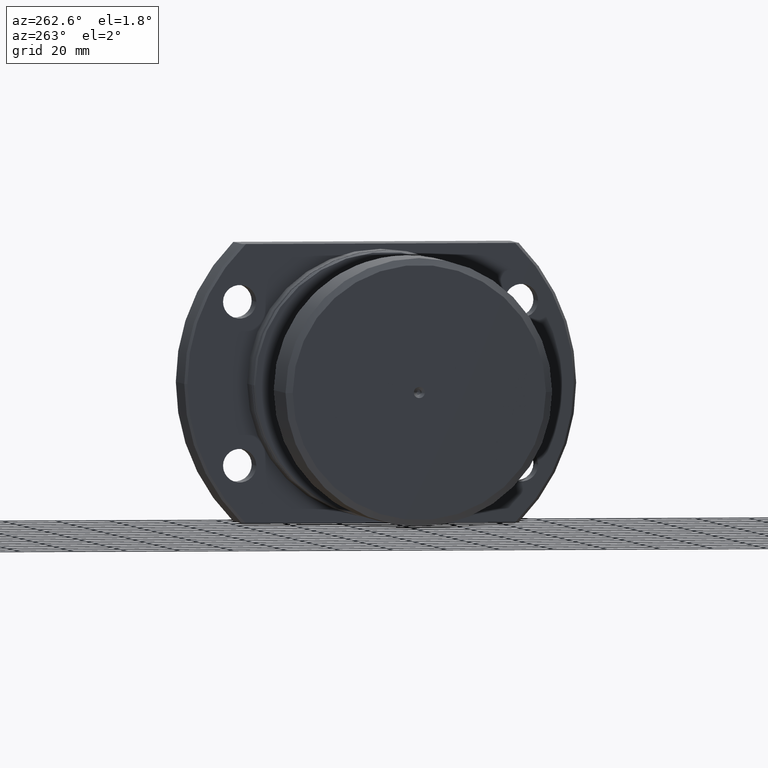
[diagram: clean part render]
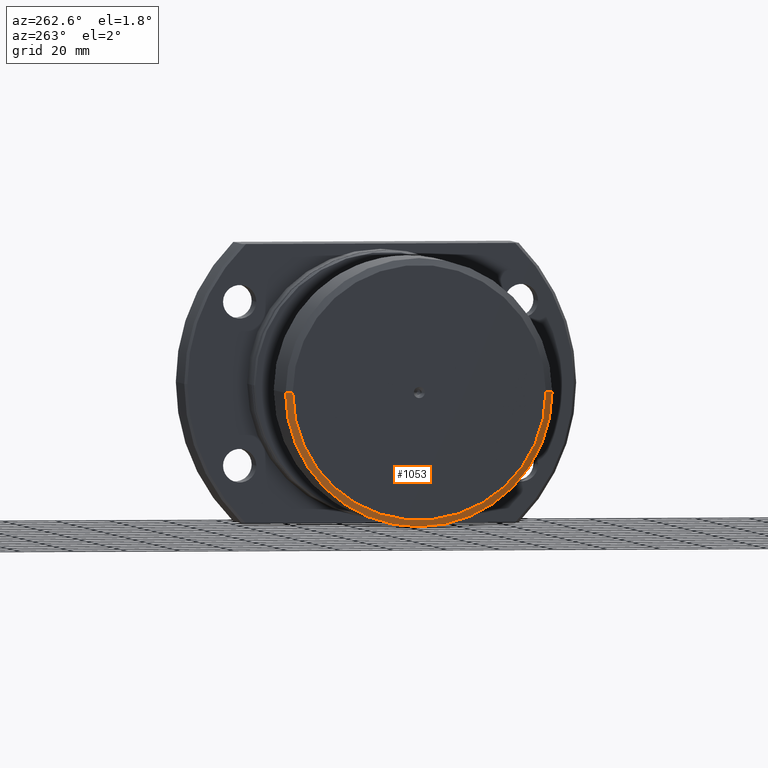
[diagram: same view with one face highlighted and labeled with its STEP entity id]
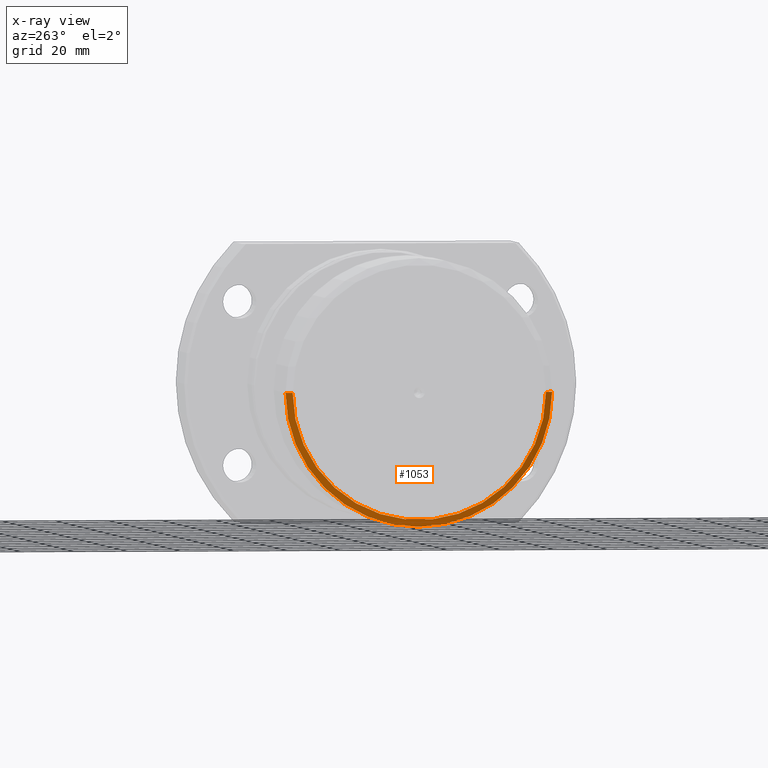
[diagram: x-ray of the same camera — body ghosted, the highlighted face saturated]
A machine part, auxiliary view. The second image highlights one B-rep face of the part: STEP entity #1053.
The next image is the same camera in x-ray: the body ghosted, the highlighted face saturated — about 0% of this face is hidden behind the body in this view.
In plain terms, the highlighted conical surface has half-angle 59.036 deg.
Its self-contained STEP definition (entity closure, byte-faithful):
#88 = DIRECTION ( 'NONE',  ( 1.000000000000000000, 1.069542322069065801E-17, 0.000000000000000000 ) ) ;
#293 = LINE ( 'NONE', #3379, #2478 ) ;
#344 = VERTEX_POINT ( 'NONE', #4117 ) ;
#368 = CARTESIAN_POINT ( 'NONE',  ( 4.801007089984315887E-15, 47.50000000000000000, 0.000000000000000000 ) ) ;
#456 = CIRCLE ( 'NONE', #532, 47.50000000000000000 ) ;
#492 = VERTEX_POINT ( 'NONE', #368 ) ;
#532 = AXIS2_PLACEMENT_3D ( 'NONE', #1782, #2932, #1014 ) ;
#601 = DIRECTION ( 'NONE',  ( 0.5144957554275262357, -0.8574929257125444293, 1.050125966765366654E-16 ) ) ;
#604 = ORIENTED_EDGE ( 'NONE', *, *, #3275, .F. ) ;
#690 = CARTESIAN_POINT ( 'NONE',  ( 5.817072295949928215E-15, -47.50000000000000000, 5.970153145843347150E-15 ) ) ;
#699 = ORIENTED_EDGE ( 'NONE', *, *, #4238, .T. ) ;
#1014 = DIRECTION ( 'NONE',  ( 1.069542322069065647E-17, -1.000000000000000000, 0.000000000000000000 ) ) ;
#1053 = ADVANCED_FACE ( 'NONE', ( #2819 ), #1500, .T. ) ;
#1063 = EDGE_CURVE ( 'NONE', #4306, #344, #1815, .T. ) ;
#1091 = CARTESIAN_POINT ( 'NONE',  ( 5.817072295949928215E-15, -47.50000000000000000, 5.817072295949928215E-15 ) ) ;
#1182 = EDGE_CURVE ( 'NONE', #2950, #344, #4170, .T. ) ;
#1326 = EDGE_LOOP ( 'NONE', ( #3456, #604, #699, #2676 ) ) ;
#1500 = CONICAL_SURFACE ( 'NONE', #2534, 47.50000000000000000, 1.030376826524312728 ) ;
#1754 = DIRECTION ( 'NONE',  ( 8.673617379884035472E-18, -1.000000000000000000, 0.000000000000000000 ) ) ;
#1782 = CARTESIAN_POINT ( 'NONE',  ( 5.309039692967122051E-15, 5.678242641172895614E-32, 0.000000000000000000 ) ) ;
#1815 = CIRCLE ( 'NONE', #4628, 50.00000000000000000 ) ;
#2478 = VECTOR ( 'NONE', #3729, 999.9999999999998863 ) ;
#2534 = AXIS2_PLACEMENT_3D ( 'NONE', #3960, #88, #4675 ) ;
#2676 = ORIENTED_EDGE ( 'NONE', *, *, #1063, .T. ) ;
#2819 = FACE_OUTER_BOUND ( 'NONE', #1326, .T. ) ;
#2932 = DIRECTION ( 'NONE',  ( -1.000000000000000000, -1.069542322069065801E-17, -0.000000000000000000 ) ) ;
#2950 = VERTEX_POINT ( 'NONE', #690 ) ;
#3123 = DIRECTION ( 'NONE',  ( -1.000000000000000000, -1.069542322069065801E-17, -0.000000000000000000 ) ) ;
#3275 = EDGE_CURVE ( 'NONE', #492, #2950, #456, .T. ) ;
#3379 = CARTESIAN_POINT ( 'NONE',  ( 4.801007089984315887E-15, 47.50000000000000000, 0.000000000000000000 ) ) ;
#3456 = ORIENTED_EDGE ( 'NONE', *, *, #1182, .F. ) ;
#3505 = CARTESIAN_POINT ( 'NONE',  ( 1.500000000000005995, 1.604313483103604941E-17, 0.000000000000000000 ) ) ;
#3508 = CARTESIAN_POINT ( 'NONE',  ( 1.500000000000005551, 50.00000000000000000, 0.000000000000000000 ) ) ;
#3729 = DIRECTION ( 'NONE',  ( 0.5144957554275262357, 0.8574929257125444293, 0.000000000000000000 ) ) ;
#3746 = VECTOR ( 'NONE', #601, 999.9999999999998863 ) ;
#3960 = CARTESIAN_POINT ( 'NONE',  ( 5.309039692967122051E-15, 5.678242641172895614E-32, 0.000000000000000000 ) ) ;
#4117 = CARTESIAN_POINT ( 'NONE',  ( 1.500000000000006217, -50.00000000000000000, 6.123233995736766085E-15 ) ) ;
#4170 = LINE ( 'NONE', #1091, #3746 ) ;
#4238 = EDGE_CURVE ( 'NONE', #492, #4306, #293, .T. ) ;
#4306 = VERTEX_POINT ( 'NONE', #3508 ) ;
#4628 = AXIS2_PLACEMENT_3D ( 'NONE', #3505, #3123, #1754 ) ;
#4675 = DIRECTION ( 'NONE',  ( -1.069542322069065647E-17, 1.000000000000000000, 0.000000000000000000 ) ) ;